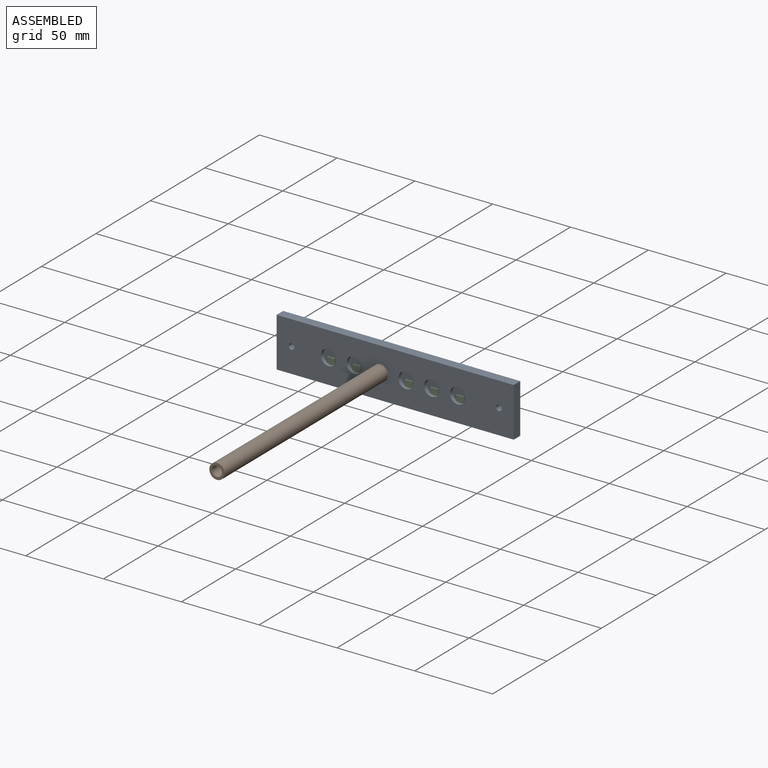
[diagram: assembled view]
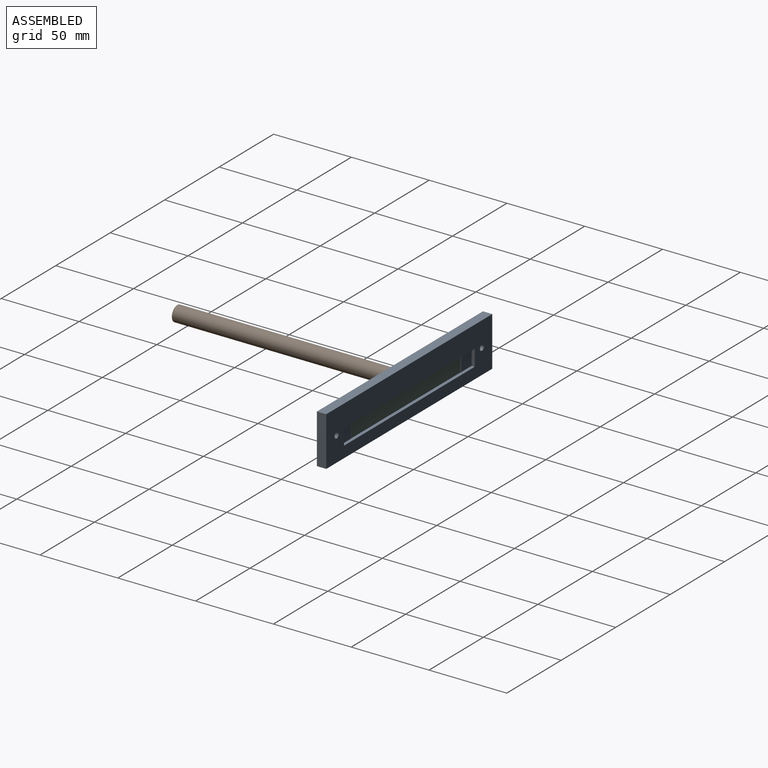
[diagram: assembled view, second angle]
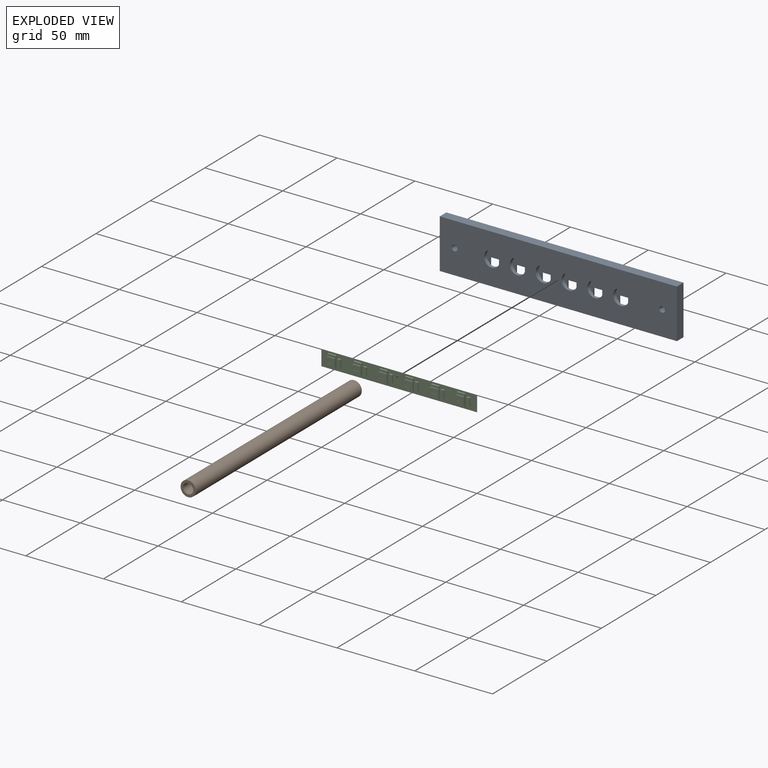
[diagram: exploded view]
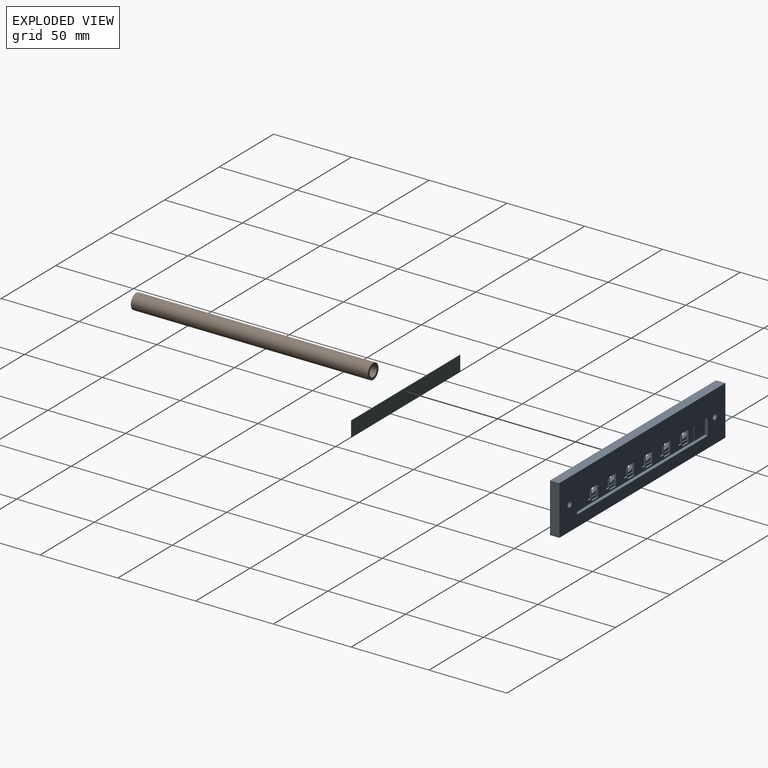
[diagram: exploded view, second angle]
ASSEMBLY  parts=3 mates=2
PART A: 117 faces, bbox 152.4x6x31.8 mm
  f0: plane 5.8x0.1mm, normal (0,0,-1), area 0.6mm2, adj f21,f22,f54,f113
  f1: plane 5.8x0.1mm, normal (0,0,-1), area 0.6mm2, adj f25,f26,f39,f111
  f2: plane 5.8x0.1mm, normal (0,0,-1), area 0.6mm2, adj f29,f30,f58,f109
  f3: plane 5.8x0.1mm, normal (0,0,-1), area 0.6mm2, adj f33,f34,f62,f107
  f4: plane 5.8x0.1mm, normal (0,0,-1), area 0.6mm2, adj f83,f86,f87,f106
  f5: plane 5.8x0.1mm, normal (0,0,-1), area 0.6mm2, adj f90,f94,f95,f104
  f6: plane 120x2mm, normal (0,0,-1), area 179.5mm2, adj f8,f9,f15,f16,f17,f18,f19,f20
  f7: plane 120x2mm, normal (0,0,1), area 179.5mm2, adj f8,f9,f15,f16,f17,f19,f20,f96
  f8: plane 10.4x9.49mm, normal (0,1,0), area 98.7mm2, adj f6,f7,f16,f19
  f9: plane 152.4x31.75mm, normal (0,1,0), area 3569.7mm2, adj f6,f7,f10,f11,f12,f13,f15,f16
  f10: plane 31.75x6mm, normal (1,0,0), area 190.5mm2, adj f9,f11,f13,f14
  f11: plane 152.4x6mm, normal (0,0,1), area 914.4mm2, adj f9,f10,f12,f14
  f12: plane 31.75x6mm, normal (-1,0,0), area 190.5mm2, adj f9,f11,f13,f14
  f13: plane 152.4x6mm, normal (0,0,-1), area 914.4mm2, adj f9,f10,f12,f14
  f14: plane 152.4x31.75mm, normal (0,-1,0), area 4346.4mm2, adj f10,f11,f12,f13,f103,f105,f108,f110
  f15: plane 10.4x2mm, normal (1,0,0), area 20.8mm2, adj f6,f7,f9,f17
  f16: plane 10.4x2mm, normal (-1,0,0), area 20.8mm2, adj f6,f7,f8,f9
  f17: plane 10.4x9.71mm, normal (0,1,0), area 101mm2, adj f6,f7,f15,f20
  f18: plane 100.8x0.2mm, normal (0,-1,0), area 20.2mm2, adj f6,f19,f20,f37
  f19: plane 10.8x1mm, normal (-1,0,0), area 4.6mm2, adj f6,f7,f8,f18,f37,f38,f96,f97
  f20: plane 10.8x1mm, normal (1,0,0), area 4.6mm2, adj f6,f7,f17,f18,f37,f38,f96,f97
  f21: plane 8.71x1.6mm, normal (-1,0,0), area 10.4mm2, adj f0,f23,f24,f53,f54,f55,f56,f97
  f22: plane 8.71x1.6mm, normal (1,0,0), area 10.4mm2, adj f0,f23,f24,f53,f54,f55,f56,f97
  f23: plane 5.8x0.6mm, normal (0,0,1), area 3.5mm2, adj f21,f22,f24,f53
  f24: plane 5.8x2.23mm, normal (0,1,0), area 9.3mm2, adj f21,f22,f23,f114
  f25: plane 8.71x1.6mm, normal (-1,0,0), area 10.4mm2, adj f1,f27,f28,f39,f40,f41,f42,f97
  f26: plane 8.71x1.6mm, normal (1,0,0), area 10.4mm2, adj f1,f27,f28,f39,f40,f41,f42,f97
  f27: plane 5.8x0.6mm, normal (0,0,1), area 3.5mm2, adj f25,f26,f28,f40
  f28: plane 5.8x2.23mm, normal (0,1,0), area 9.3mm2, adj f25,f26,f27,f112
  f29: plane 8.71x1.6mm, normal (-1,0,0), area 10.4mm2, adj f2,f31,f32,f57,f58,f59,f60,f97
  f30: plane 8.71x1.6mm, normal (1,0,0), area 10.4mm2, adj f2,f31,f32,f57,f58,f59,f60,f97
  f31: plane 5.8x0.6mm, normal (0,0,1), area 3.5mm2, adj f29,f30,f32,f60
  f32: plane 5.8x2.23mm, normal (0,1,0), area 9.3mm2, adj f29,f30,f31,f110
  f33: plane 8.71x1.6mm, normal (-1,0,0), area 10.4mm2, adj f3,f35,f36,f61,f62,f63,f64,f97
  f34: plane 8.71x1.6mm, normal (1,0,0), area 10.4mm2, adj f3,f35,f36,f61,f62,f63,f64,f97
  f35: plane 5.8x0.6mm, normal (0,0,1), area 3.5mm2, adj f33,f34,f36,f64
  f36: plane 5.8x2.23mm, normal (0,1,0), area 9.3mm2, adj f33,f34,f35,f108
  f37: plane 100.8x1mm, normal (0,0,-1), area 100.8mm2, adj f18,f19,f20,f97
  f38: plane 100.8x1mm, normal (0,0,1), area 100.8mm2, adj f19,f20,f96,f97
  f39: plane 5.8x1.46mm, normal (0,1,0), area 8.4mm2, adj f1,f25,f26,f41
  f40: plane 5.8x1.46mm, normal (0,1,0), area 8.4mm2, adj f25,f26,f27,f42
  f41: plane 5.8x1mm, normal (0,0,-1), area 5.8mm2, adj f25,f26,f39,f97
  f42: plane 5.8x1mm, normal (0,0,1), area 5.8mm2, adj f25,f26,f40,f97
  f43: plane 5.8x2.8mm, normal (0,1,0), area 16.2mm2, adj f44,f45,f46,f47
  f44: plane 2.8x1mm, normal (0,0,1), area 2.8mm2, adj f43,f45,f47,f97
  f45: plane 5.8x1mm, normal (1,0,0), area 5.8mm2, adj f43,f44,f46,f97
  f46: plane 2.8x1mm, normal (0,0,-1), area 2.8mm2, adj f43,f45,f47,f97
  f47: plane 5.8x1mm, normal (-1,0,0), area 5.8mm2, adj f43,f44,f46,f97
  f48: plane 5.8x2.8mm, normal (0,1,0), area 16.2mm2, adj f49,f50,f51,f52
  f49: plane 2.8x1mm, normal (0,0,1), area 2.8mm2, adj f48,f50,f52,f97
  f50: plane 5.8x1mm, normal (1,0,0), area 5.8mm2, adj f48,f49,f51,f97
  f51: plane 2.8x1mm, normal (0,0,-1), area 2.8mm2, adj f48,f50,f52,f97
  f52: plane 5.8x1mm, normal (-1,0,0), area 5.8mm2, adj f48,f49,f51,f97
  f53: plane 5.8x1.46mm, normal (0,1,0), area 8.4mm2, adj f21,f22,f23,f55
  f54: plane 5.8x1.46mm, normal (0,1,0), area 8.4mm2, adj f0,f21,f22,f56
  f55: plane 5.8x1mm, normal (0,0,1), area 5.8mm2, adj f21,f22,f53,f97
  f56: plane 5.8x1mm, normal (0,0,-1), area 5.8mm2, adj f21,f22,f54,f97
  f57: plane 5.8x1mm, normal (0,0,-1), area 5.8mm2, adj f29,f30,f58,f97
  f58: plane 5.8x1.46mm, normal (0,1,0), area 8.4mm2, adj f2,f29,f30,f57
  f59: plane 5.8x1mm, normal (0,0,1), area 5.8mm2, adj f29,f30,f60,f97
  f60: plane 5.8x1.46mm, normal (0,1,0), area 8.4mm2, adj f29,f30,f31,f59
  f61: plane 5.8x1mm, normal (0,0,-1), area 5.8mm2, adj f33,f34,f62,f97
  f62: plane 5.8x1.46mm, normal (0,1,0), area 8.4mm2, adj f3,f33,f34,f61
  f63: plane 5.8x1mm, normal (0,0,1), area 5.8mm2, adj f33,f34,f64,f97
  f64: plane 5.8x1.46mm, normal (0,1,0), area 8.4mm2, adj f33,f34,f35,f63
  f65: plane 5.8x1mm, normal (-1,0,0), area 5.8mm2, adj f66,f68,f69,f97
  f66: plane 2.8x1mm, normal (0,0,-1), area 2.8mm2, adj f65,f67,f69,f97
  f67: plane 5.8x1mm, normal (1,0,0), area 5.8mm2, adj f66,f68,f69,f97
  f68: plane 2.8x1mm, normal (0,0,1), area 2.8mm2, adj f65,f67,f69,f97
  f69: plane 5.8x2.8mm, normal (0,1,0), area 16.2mm2, adj f65,f66,f67,f68
  f70: plane 5.8x1mm, normal (-1,0,0), area 5.8mm2, adj f71,f73,f74,f97
  f71: plane 2.8x1mm, normal (0,0,-1), area 2.8mm2, adj f70,f72,f74,f97
  f72: plane 5.8x1mm, normal (1,0,0), area 5.8mm2, adj f71,f73,f74,f97
  f73: plane 2.8x1mm, normal (0,0,1), area 2.8mm2, adj f70,f72,f74,f97
  f74: plane 5.8x2.8mm, normal (0,1,0), area 16.2mm2, adj f70,f71,f72,f73
  f75: plane 5.8x1mm, normal (-1,0,0), area 5.8mm2, adj f76,f78,f79,f97
  f76: plane 2.8x1mm, normal (0,0,-1), area 2.8mm2, adj f75,f77,f79,f97
  f77: plane 5.8x1mm, normal (1,0,0), area 5.8mm2, adj f76,f78,f79,f97
  f78: plane 2.8x1mm, normal (0,0,1), area 2.8mm2, adj f75,f77,f79,f97
  f79: plane 5.8x2.8mm, normal (0,1,0), area 16.2mm2, adj f75,f76,f77,f78
  f80: plane 5.8x2.23mm, normal (0,1,0), area 9.3mm2, adj f85,f86,f87,f105
  f81: plane 5.8x1.46mm, normal (0,1,0), area 8.4mm2, adj f82,f85,f86,f87
  f82: plane 5.8x1mm, normal (0,0,1), area 5.8mm2, adj f81,f86,f87,f97
  f83: plane 5.8x1.46mm, normal (0,1,0), area 8.4mm2, adj f4,f84,f86,f87
  f84: plane 5.8x1mm, normal (0,0,-1), area 5.8mm2, adj f83,f86,f87,f97
  f85: plane 5.8x0.6mm, normal (0,0,1), area 3.5mm2, adj f80,f81,f86,f87
  f86: plane 8.71x1.6mm, normal (1,0,0), area 10.4mm2, adj f4,f80,f81,f82,f83,f84,f85,f97
  f87: plane 8.71x1.6mm, normal (-1,0,0), area 10.4mm2, adj f4,f80,f81,f82,f83,f84,f85,f97
  f88: plane 5.8x1.46mm, normal (0,1,0), area 8.4mm2, adj f89,f93,f94,f95
  f89: plane 5.8x1mm, normal (0,0,1), area 5.8mm2, adj f88,f94,f95,f97
  f90: plane 5.8x1.46mm, normal (0,1,0), area 8.4mm2, adj f5,f91,f94,f95
  f91: plane 5.8x1mm, normal (0,0,-1), area 5.8mm2, adj f90,f94,f95,f97
  f92: plane 5.8x2.23mm, normal (0,1,0), area 9.3mm2, adj f93,f94,f95,f103
  f93: plane 5.8x0.6mm, normal (0,0,1), area 3.5mm2, adj f88,f92,f94,f95
  f94: plane 8.71x1.6mm, normal (1,0,0), area 10.4mm2, adj f5,f88,f89,f90,f91,f92,f93,f97
  f95: plane 8.71x1.6mm, normal (-1,0,0), area 10.4mm2, adj f5,f88,f89,f90,f91,f92,f93,f97
  f96: plane 100.8x0.2mm, normal (0,-1,0), area 20.2mm2, adj f7,f19,f20,f38
  f97: plane 100.8x10.8mm, normal (0,1,0), area 688mm2, adj f19,f20,f21,f22,f25,f26,f29,f30
  f98: plane 5.8x1mm, normal (-1,0,0), area 5.8mm2, adj f97,f99,f101,f102
  f99: plane 2.8x1mm, normal (0,0,-1), area 2.8mm2, adj f97,f98,f100,f102
  f100: plane 5.8x1mm, normal (1,0,0), area 5.8mm2, adj f97,f99,f101,f102
  f101: plane 2.8x1mm, normal (0,0,1), area 2.8mm2, adj f97,f98,f100,f102
  f102: plane 5.8x2.8mm, normal (0,1,0), area 16.2mm2, adj f98,f99,f100,f101
  f103: cylinder r=5mm len=10mm, axis (0,-1,0), area 75.4mm2, adj f14,f92,f94,f95,f104
  f104: plane 10x9.07mm, normal (0,-1,0), area 54.2mm2, adj f5,f94,f95,f103
  f105: cylinder r=5mm len=10mm, axis (0,-1,0), area 75.4mm2, adj f14,f80,f86,f87,f106
  f106: plane 10x9.07mm, normal (0,-1,0), area 54.2mm2, adj f4,f86,f87,f105
  f107: plane 10x9.07mm, normal (0,-1,0), area 54.2mm2, adj f3,f33,f34,f108
  f108: cylinder r=5mm len=10mm, axis (0,-1,0), area 75.4mm2, adj f14,f33,f34,f36,f107
  f109: plane 10x9.07mm, normal (0,-1,0), area 54.2mm2, adj f2,f29,f30,f110
  f110: cylinder r=5mm len=10mm, axis (0,-1,0), area 75.4mm2, adj f14,f29,f30,f32,f109
  f111: plane 10x9.07mm, normal (0,-1,0), area 54.2mm2, adj f1,f25,f26,f112
  f112: cylinder r=5mm len=10mm, axis (0,-1,0), area 75.4mm2, adj f14,f25,f26,f28,f111
  f113: plane 10x9.07mm, normal (0,-1,0), area 54.2mm2, adj f0,f21,f22,f114
  f114: cylinder r=5mm len=10mm, axis (0,-1,0), area 75.4mm2, adj f14,f21,f22,f24,f113
  f115: cylinder r=1.83mm len=6mm, axis (0,1,0), area 68.9mm2, adj f9,f14
  f116: cylinder r=1.83mm len=6mm, axis (0,1,0), area 68.9mm2, adj f9,f14
PART B: 4 faces, bbox 9.8x152.4x9.8 mm
  f0: cylinder r=3.25mm len=152.4mm, axis (0,1,0), area 3112.1mm2, adj f2,f3
  f1: cylinder r=4.9mm len=152.4mm, axis (0,1,0), area 4692mm2, adj f2,f3
  f2: plane 9.8x9.8mm, normal (0,-1,0), area 42.2mm2, adj f0,f1
  f3: plane 9.8x9.8mm, normal (0,1,0), area 42.2mm2, adj f0,f1
PART C: 132 faces, bbox 100x1.8x10 mm
  f0: plane 7.91x1.6mm, normal (1,0,0), area 10.9mm2, adj f1,f4,f5,f66,f67,f68,f69,f126
  f1: plane 5x0.6mm, normal (0,0,1), area 3mm2, adj f0,f2,f5,f67
  f2: plane 7.91x1.6mm, normal (-1,0,0), area 10.9mm2, adj f1,f4,f5,f66,f67,f68,f69,f126
  f3: cylinder r=1.88mm len=3.75mm, axis (0,1,0), area 1.2mm2, adj f5,f11
  f4: plane 5x0.6mm, normal (0,0,-1), area 3mm2, adj f0,f2,f5,f66
  f5: plane 5x5mm, normal (0,-1,0), area 14mm2, adj f0,f1,f2,f3,f4
  f6: plane 2.5x0.5mm, normal (0,-1,0), area 1.3mm2, adj f7,f8,f9,f10
  f7: plane 2.5x0.1mm, normal (0,0,-1), area 0.3mm2, adj f6,f8,f10,f11
  f8: plane 0.5x0.1mm, normal (1,0,0), area 0.1mm2, adj f6,f7,f9,f11
  f9: plane 2.5x0.1mm, normal (0,0,1), area 0.3mm2, adj f6,f8,f10,f11
  f10: plane 0.5x0.1mm, normal (-1,0,0), area 0.1mm2, adj f6,f7,f9,f11
  f11: plane 3.75x3.75mm, normal (0,-1,0), area 9.8mm2, adj f3,f7,f8,f9,f10
  f12: plane 7.91x1.6mm, normal (1,0,0), area 10.9mm2, adj f13,f16,f17,f52,f53,f54,f55,f126
  f13: plane 5x0.6mm, normal (0,0,1), area 3mm2, adj f12,f14,f17,f52
  f14: plane 7.91x1.6mm, normal (-1,0,0), area 10.9mm2, adj f13,f16,f17,f52,f53,f54,f55,f126
  f15: cylinder r=1.88mm len=3.75mm, axis (0,1,0), area 1.2mm2, adj f17,f23
  f16: plane 5x0.6mm, normal (0,0,-1), area 3mm2, adj f12,f14,f17,f53
  f17: plane 5x5mm, normal (0,-1,0), area 14mm2, adj f12,f13,f14,f15,f16
  f18: plane 2.5x0.5mm, normal (0,-1,0), area 1.3mm2, adj f19,f20,f21,f22
  f19: plane 0.5x0.1mm, normal (-1,0,0), area 0.1mm2, adj f18,f20,f22,f23
  f20: plane 2.5x0.1mm, normal (0,0,-1), area 0.3mm2, adj f18,f19,f21,f23
  f21: plane 0.5x0.1mm, normal (1,0,0), area 0.1mm2, adj f18,f20,f22,f23
  f22: plane 2.5x0.1mm, normal (0,0,1), area 0.3mm2, adj f18,f19,f21,f23
  f23: plane 3.75x3.75mm, normal (0,-1,0), area 9.8mm2, adj f15,f19,f20,f21,f22
  f24: plane 7.91x1.6mm, normal (1,0,0), area 10.9mm2, adj f25,f28,f29,f70,f71,f72,f73,f126
  f25: plane 5x0.6mm, normal (0,0,1), area 3mm2, adj f24,f26,f29,f71
  f26: plane 7.91x1.6mm, normal (-1,0,0), area 10.9mm2, adj f25,f28,f29,f70,f71,f72,f73,f126
  f27: cylinder r=1.88mm len=3.75mm, axis (0,1,0), area 1.2mm2, adj f29,f35
  f28: plane 5x0.6mm, normal (0,0,-1), area 3mm2, adj f24,f26,f29,f73
  f29: plane 5x5mm, normal (0,-1,0), area 14mm2, adj f24,f25,f26,f27,f28
  f30: plane 2.5x0.5mm, normal (0,-1,0), area 1.2mm2, adj f31,f32,f33,f34
  f31: plane 2.5x0.1mm, normal (0,0,-1), area 0.3mm2, adj f30,f32,f34,f35
  f32: plane 0.5x0.1mm, normal (1,0,0), area 0.1mm2, adj f30,f31,f33,f35
  f33: plane 2.5x0.1mm, normal (0,0,1), area 0.3mm2, adj f30,f32,f34,f35
  f34: plane 0.5x0.1mm, normal (-1,0,0), area 0.1mm2, adj f30,f31,f33,f35
  f35: plane 3.75x3.75mm, normal (0,-1,0), area 9.8mm2, adj f27,f31,f32,f33,f34
  f36: plane 7.91x1.6mm, normal (1,0,0), area 10.9mm2, adj f37,f40,f41,f74,f75,f76,f77,f126
  f37: plane 5x0.6mm, normal (0,0,1), area 3mm2, adj f36,f38,f41,f75
  f38: plane 7.91x1.6mm, normal (-1,0,0), area 10.9mm2, adj f37,f40,f41,f74,f75,f76,f77,f126
  f39: cylinder r=1.88mm len=3.75mm, axis (0,1,0), area 1.2mm2, adj f41,f47
  f40: plane 5x0.6mm, normal (0,0,-1), area 3mm2, adj f36,f38,f41,f77
  f41: plane 5x5mm, normal (0,-1,0), area 14mm2, adj f36,f37,f38,f39,f40
  f42: plane 2.5x0.5mm, normal (0,-1,0), area 1.2mm2, adj f43,f44,f45,f46
  f43: plane 2.5x0.1mm, normal (0,0,-1), area 0.3mm2, adj f42,f44,f46,f47
  f44: plane 0.5x0.1mm, normal (1,0,0), area 0.1mm2, adj f42,f43,f45,f47
  f45: plane 2.5x0.1mm, normal (0,0,1), area 0.3mm2, adj f42,f44,f46,f47
  f46: plane 0.5x0.1mm, normal (-1,0,0), area 0.1mm2, adj f42,f43,f45,f47
  f47: plane 3.75x3.75mm, normal (0,-1,0), area 9.8mm2, adj f39,f43,f44,f45,f46
  f48: plane 10x0.2mm, normal (1,0,0), area 2mm2, adj f49,f51,f125,f126
  f49: plane 100x0.2mm, normal (0,0,1), area 20mm2, adj f48,f50,f125,f126
  f50: plane 10x0.2mm, normal (-1,0,0), area 2mm2, adj f49,f51,f125,f126
  f51: plane 100x0.2mm, normal (0,0,-1), area 20mm2, adj f48,f50,f125,f126
  f52: plane 5x1.46mm, normal (0,-1,0), area 7.3mm2, adj f12,f13,f14,f54
  f53: plane 5x1.46mm, normal (0,-1,0), area 7.3mm2, adj f12,f14,f16,f55
  f54: plane 5x1mm, normal (0,0,1), area 5mm2, adj f12,f14,f52,f126
  f55: plane 5x1mm, normal (0,0,-1), area 5mm2, adj f12,f14,f53,f126
  f56: plane 5x2mm, normal (0,-1,0), area 10mm2, adj f57,f58,f59,f60
  f57: plane 2x1mm, normal (0,0,-1), area 2mm2, adj f56,f58,f60,f126
  f58: plane 5x1mm, normal (-1,0,0), area 5mm2, adj f56,f57,f59,f126
  f59: plane 2x1mm, normal (0,0,1), area 2mm2, adj f56,f58,f60,f126
  f60: plane 5x1mm, normal (1,0,0), area 5mm2, adj f56,f57,f59,f126
  f61: plane 5x2mm, normal (0,-1,0), area 10mm2, adj f62,f63,f64,f65
  f62: plane 2x1mm, normal (0,0,-1), area 2mm2, adj f61,f63,f65,f126
  f63: plane 5x1mm, normal (-1,0,0), area 5mm2, adj f61,f62,f64,f126
  f64: plane 2x1mm, normal (0,0,1), area 2mm2, adj f61,f63,f65,f126
  f65: plane 5x1mm, normal (1,0,0), area 5mm2, adj f61,f62,f64,f126
  f66: plane 5x1.46mm, normal (0,-1,0), area 7.3mm2, adj f0,f2,f4,f68
  f67: plane 5x1.46mm, normal (0,-1,0), area 7.3mm2, adj f0,f1,f2,f69
  f68: plane 5x1mm, normal (0,0,-1), area 5mm2, adj f0,f2,f66,f126
  f69: plane 5x1mm, normal (0,0,1), area 5mm2, adj f0,f2,f67,f126
  f70: plane 5x1mm, normal (0,0,1), area 5mm2, adj f24,f26,f71,f126
  f71: plane 5x1.46mm, normal (0,-1,0), area 7.3mm2, adj f24,f25,f26,f70
  f72: plane 5x1mm, normal (0,0,-1), area 5mm2, adj f24,f26,f73,f126
  f73: plane 5x1.46mm, normal (0,-1,0), area 7.3mm2, adj f24,f26,f28,f72
  f74: plane 5x1mm, normal (0,0,1), area 5mm2, adj f36,f38,f75,f126
  f75: plane 5x1.46mm, normal (0,-1,0), area 7.3mm2, adj f36,f37,f38,f74
  f76: plane 5x1mm, normal (0,0,-1), area 5mm2, adj f36,f38,f77,f126
  f77: plane 5x1.46mm, normal (0,-1,0), area 7.3mm2, adj f36,f38,f40,f76
  f78: plane 5x1mm, normal (1,0,0), area 5mm2, adj f79,f81,f82,f126
  f79: plane 2x1mm, normal (0,0,1), area 2mm2, adj f78,f80,f82,f126
  f80: plane 5x1mm, normal (-1,0,0), area 5mm2, adj f79,f81,f82,f126
  f81: plane 2x1mm, normal (0,0,-1), area 2mm2, adj f78,f80,f82,f126
  f82: plane 5x2mm, normal (0,-1,0), area 10mm2, adj f78,f79,f80,f81
  f83: plane 5x1mm, normal (1,0,0), area 5mm2, adj f84,f86,f87,f126
  f84: plane 2x1mm, normal (0,0,1), area 2mm2, adj f83,f85,f87,f126
  f85: plane 5x1mm, normal (-1,0,0), area 5mm2, adj f84,f86,f87,f126
  f86: plane 2x1mm, normal (0,0,-1), area 2mm2, adj f83,f85,f87,f126
  f87: plane 5x2mm, normal (0,-1,0), area 10mm2, adj f83,f84,f85,f86
  f88: plane 5x1mm, normal (1,0,0), area 5mm2, adj f89,f91,f92,f126
  f89: plane 2x1mm, normal (0,0,1), area 2mm2, adj f88,f90,f92,f126
  f90: plane 5x1mm, normal (-1,0,0), area 5mm2, adj f89,f91,f92,f126
  f91: plane 2x1mm, normal (0,0,-1), area 2mm2, adj f88,f90,f92,f126
  f92: plane 5x2mm, normal (0,-1,0), area 10mm2, adj f88,f89,f90,f91
  f93: plane 2.5x0.1mm, normal (0,0,1), area 0.3mm2, adj f94,f96,f97,f98
  f94: plane 0.5x0.1mm, normal (-1,0,0), area 0.1mm2, adj f93,f95,f97,f98
  f95: plane 2.5x0.1mm, normal (0,0,-1), area 0.3mm2, adj f94,f96,f97,f98
  f96: plane 0.5x0.1mm, normal (1,0,0), area 0.1mm2, adj f93,f95,f97,f98
  f97: plane 2.5x0.5mm, normal (0,-1,0), area 1.3mm2, adj f93,f94,f95,f96
  f98: plane 3.75x3.75mm, normal (0,-1,0), area 9.8mm2, adj f93,f94,f95,f96,f105
  f99: plane 5x1.46mm, normal (0,-1,0), area 7.3mm2, adj f100,f104,f106,f108
  f100: plane 5x1mm, normal (0,0,-1), area 5mm2, adj f99,f106,f108,f126
  f101: plane 5x1.46mm, normal (0,-1,0), area 7.3mm2, adj f102,f106,f107,f108
  f102: plane 5x1mm, normal (0,0,1), area 5mm2, adj f101,f106,f108,f126
  f103: plane 5x5mm, normal (0,-1,0), area 14mm2, adj f104,f105,f106,f107,f108
  f104: plane 5x0.6mm, normal (0,0,-1), area 3mm2, adj f99,f103,f106,f108
  f105: cylinder r=1.88mm len=3.75mm, axis (0,1,0), area 1.2mm2, adj f98,f103
  f106: plane 7.91x1.6mm, normal (-1,0,0), area 10.9mm2, adj f99,f100,f101,f102,f103,f104,f107,f126
  f107: plane 5x0.6mm, normal (0,0,1), area 3mm2, adj f101,f103,f106,f108
  f108: plane 7.91x1.6mm, normal (1,0,0), area 10.9mm2, adj f99,f100,f101,f102,f103,f104,f107,f126
  f109: plane 5x1.46mm, normal (0,-1,0), area 7.3mm2, adj f110,f120,f122,f124
  f110: plane 5x1mm, normal (0,0,-1), area 5mm2, adj f109,f122,f124,f126
  f111: plane 5x1.46mm, normal (0,-1,0), area 7.3mm2, adj f112,f122,f123,f124
  f112: plane 5x1mm, normal (0,0,1), area 5mm2, adj f111,f122,f124,f126
  f113: plane 2.5x0.1mm, normal (0,0,1), area 0.2mm2, adj f114,f116,f117,f118
  f114: plane 0.5x0.1mm, normal (-1,0,0), area 0.1mm2, adj f113,f115,f117,f118
  f115: plane 2.5x0.1mm, normal (0,0,-1), area 0.2mm2, adj f114,f116,f117,f118
  f116: plane 0.5x0.1mm, normal (1,0,0), area 0.1mm2, adj f113,f115,f117,f118
  f117: plane 2.5x0.5mm, normal (0,-1,0), area 1.2mm2, adj f113,f114,f115,f116
  f118: plane 3.75x3.75mm, normal (0,-1,0), area 9.8mm2, adj f113,f114,f115,f116,f121
  f119: plane 5x5mm, normal (0,-1,0), area 14mm2, adj f120,f121,f122,f123,f124
  f120: plane 5x0.6mm, normal (0,0,-1), area 3mm2, adj f109,f119,f122,f124
  f121: cylinder r=1.88mm len=3.75mm, axis (0,1,0), area 1.2mm2, adj f118,f119
  f122: plane 7.91x1.6mm, normal (-1,0,0), area 10.9mm2, adj f109,f110,f111,f112,f119,f120,f123,f126
  f123: plane 5x0.6mm, normal (0,0,1), area 3mm2, adj f111,f119,f122,f124
  f124: plane 7.91x1.6mm, normal (1,0,0), area 10.9mm2, adj f109,f110,f111,f112,f119,f120,f123,f126
  f125: plane 100x10mm, normal (0,1,0), area 1000mm2, adj f48,f49,f50,f51
  f126: plane 100x10mm, normal (0,-1,0), area 702.7mm2, adj f0,f2,f12,f14,f24,f26,f36,f38
  f127: plane 5x1mm, normal (1,0,0), area 5mm2, adj f126,f128,f130,f131
  f128: plane 2x1mm, normal (0,0,1), area 2mm2, adj f126,f127,f129,f131
  f129: plane 5x1mm, normal (-1,0,0), area 5mm2, adj f126,f128,f130,f131
  f130: plane 2x1mm, normal (0,0,-1), area 2mm2, adj f126,f127,f129,f131
  f131: plane 5x2mm, normal (0,-1,0), area 10mm2, adj f127,f128,f129,f130
PLACE A t=(5.35,16.05,5.04)mm
PLACE B t=(-4.25,12.55,5.04)mm
PLACE C t=(5.4,13.65,1.71)mm
MATE parallel B.f1 <-> A.f108  axis (0,1,0) through (-4.25,12.55,5.04)mm
MATE parallel C.f61 <-> A.f48  axis (0,-1,0) through (50.3,12.65,1.71)mm
